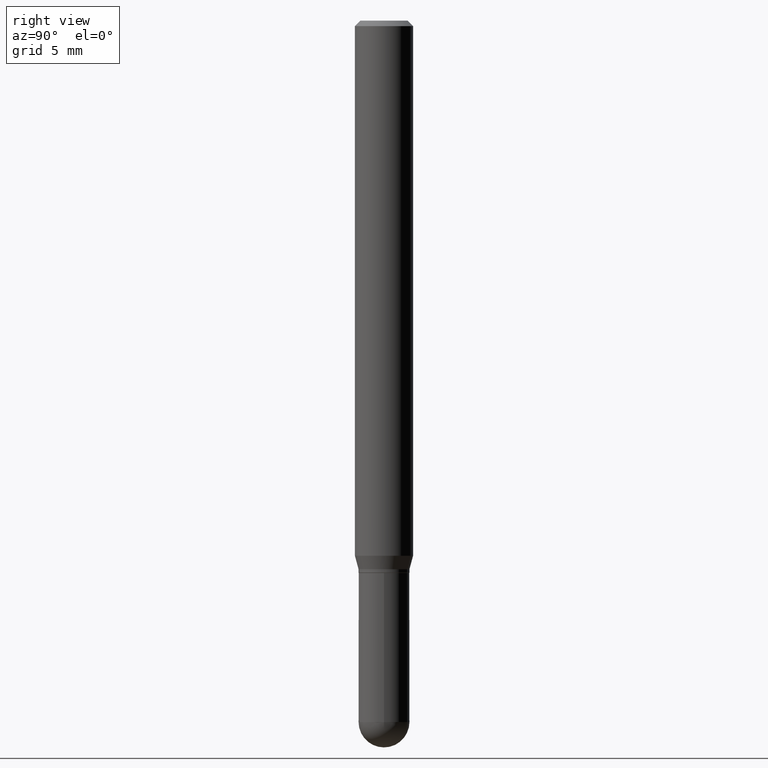
[diagram: clean part render]
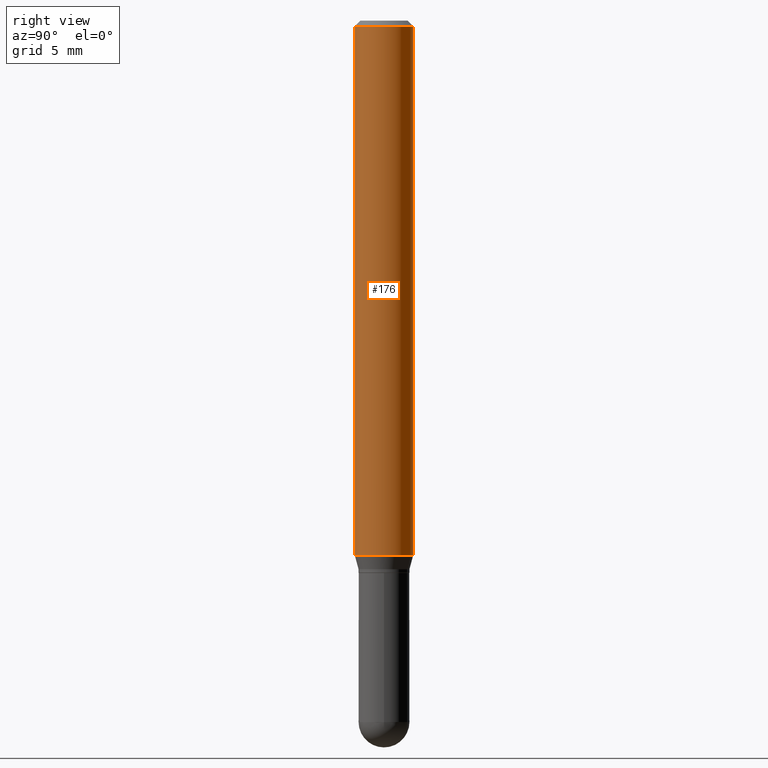
[diagram: same view with one face highlighted and labeled with its STEP entity id]
A machine part, right view. The second image highlights one B-rep face of the part: STEP entity #176.
In plain terms, the highlighted cylindrical surface (edge-blend (fillet) strip) has radius 2.0002 mm, axis along (-0, 0, 1).
Its self-contained STEP definition (entity closure, byte-faithful):
#8 = EDGE_CURVE ( 'NONE', #423, #178, #62, .T. ) ;
#16 = EDGE_CURVE ( 'NONE', #111, #494, #409, .T. ) ;
#17 = CARTESIAN_POINT ( 'NONE',  ( 5.595524044111143991E-16, 0.07874999999999994504, -0.01500000000000017292 ) ) ;
#27 = AXIS2_PLACEMENT_3D ( 'NONE', #195, #437, #281 ) ;
#42 = CARTESIAN_POINT ( 'NONE',  ( 3.545356026059983484E-29, -5.058848944146210267E-15, -1.449339299545445714 ) ) ;
#51 = DIRECTION ( 'NONE',  ( -2.446187740284079292E-29, 3.490451784294271843E-15, 1.000000000000000000 ) ) ;
#62 = LINE ( 'NONE', #341, #302 ) ;
#66 = ORIENTED_EDGE ( 'NONE', *, *, #89, .T. ) ;
#69 = DIRECTION ( 'NONE',  ( -2.446187740284079012E-29, 3.490451784294271449E-15, 1.000000000000000000 ) ) ;
#87 = AXIS2_PLACEMENT_3D ( 'NONE', #90, #51, #203 ) ;
#89 = EDGE_CURVE ( 'NONE', #423, #111, #220, .T. ) ;
#90 = CARTESIAN_POINT ( 'NONE',  ( 0.000000000000000000, 0.000000000000000000, 0.000000000000000000 ) ) ;
#111 = VERTEX_POINT ( 'NONE', #359 ) ;
#137 = ORIENTED_EDGE ( 'NONE', *, *, #153, .F. ) ;
#146 = AXIS2_PLACEMENT_3D ( 'NONE', #42, #242, #395 ) ;
#148 = CARTESIAN_POINT ( 'NONE',  ( 5.595524044110786045E-16, 0.07874999999999997280, -2.748730780131737952E-16 ) ) ;
#153 = EDGE_CURVE ( 'NONE', #178, #494, #488, .T. ) ;
#161 = CARTESIAN_POINT ( 'NONE',  ( -5.499083108677930499E-16, -0.07875000000000004219, -0.01499999999999962301 ) ) ;
#176 = ADVANCED_FACE ( 'NONE', ( #477 ), #441, .T. ) ;
#178 = VERTEX_POINT ( 'NONE', #161 ) ;
#195 = CARTESIAN_POINT ( 'NONE',  ( 3.669281610426094328E-31, -5.235677676441372167E-17, -0.01499999999999989710 ) ) ;
#203 = DIRECTION ( 'NONE',  ( -6.982962677686265922E-15, -1.000000000000000000, 3.490451784294271449E-15 ) ) ;
#214 = DIRECTION ( 'NONE',  ( -2.446187740284079012E-29, 3.490451784294271449E-15, 1.000000000000000000 ) ) ;
#220 = CIRCLE ( 'NONE', #146, 0.07874999999999997280 ) ;
#223 = EDGE_LOOP ( 'NONE', ( #66, #424, #137, #363 ) ) ;
#242 = DIRECTION ( 'NONE',  ( -2.446187740284079292E-29, 3.490451784294271843E-15, 1.000000000000000000 ) ) ;
#260 = CARTESIAN_POINT ( 'NONE',  ( -5.499083108677578469E-16, -0.07875000000000501044, -1.449339299545445270 ) ) ;
#281 = DIRECTION ( 'NONE',  ( -6.982962677686264344E-15, -1.000000000000000000, 3.496114991891765576E-15 ) ) ;
#302 = VECTOR ( 'NONE', #69, 39.37007874015748143 ) ;
#328 = VECTOR ( 'NONE', #214, 39.37007874015748143 ) ;
#341 = CARTESIAN_POINT ( 'NONE',  ( -5.499083108677932471E-16, -0.07874999999999997280, 2.748730780131737952E-16 ) ) ;
#359 = CARTESIAN_POINT ( 'NONE',  ( 5.595524044111142018E-16, 0.07874999999999494904, -1.449339299545445936 ) ) ;
#363 = ORIENTED_EDGE ( 'NONE', *, *, #8, .F. ) ;
#395 = DIRECTION ( 'NONE',  ( -6.982962677686265922E-15, -1.000000000000000000, 3.469013325287954477E-15 ) ) ;
#409 = LINE ( 'NONE', #148, #328 ) ;
#423 = VERTEX_POINT ( 'NONE', #260 ) ;
#424 = ORIENTED_EDGE ( 'NONE', *, *, #16, .T. ) ;
#437 = DIRECTION ( 'NONE',  ( -2.446187740284079292E-29, 3.490451784294271843E-15, 1.000000000000000000 ) ) ;
#441 = CYLINDRICAL_SURFACE ( 'NONE', #87, 0.07874999999999997280 ) ;
#477 = FACE_OUTER_BOUND ( 'NONE', #223, .T. ) ;
#488 = CIRCLE ( 'NONE', #27, 0.07875000000000000056 ) ;
#494 = VERTEX_POINT ( 'NONE', #17 ) ;